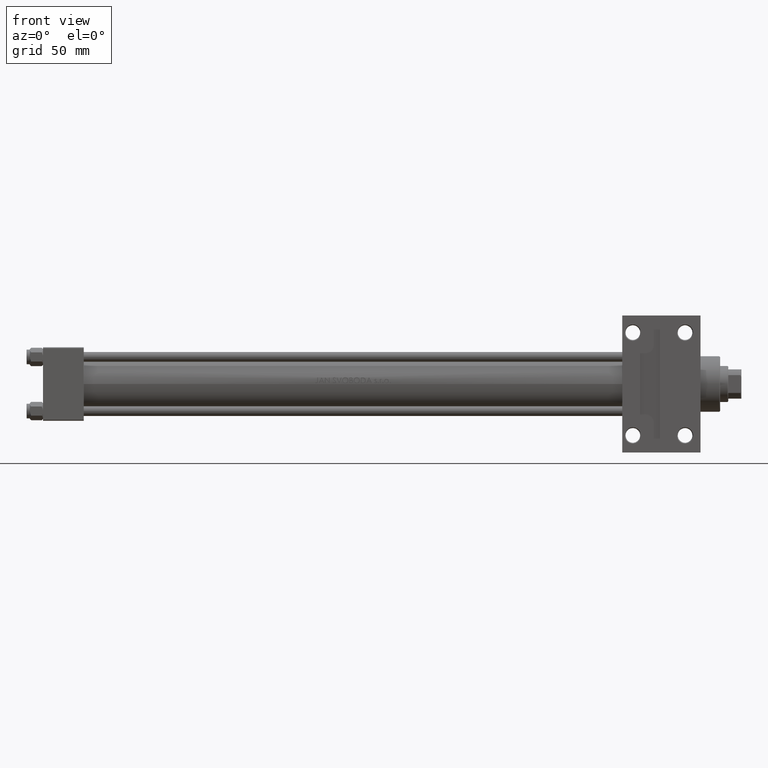
[diagram: clean part render]
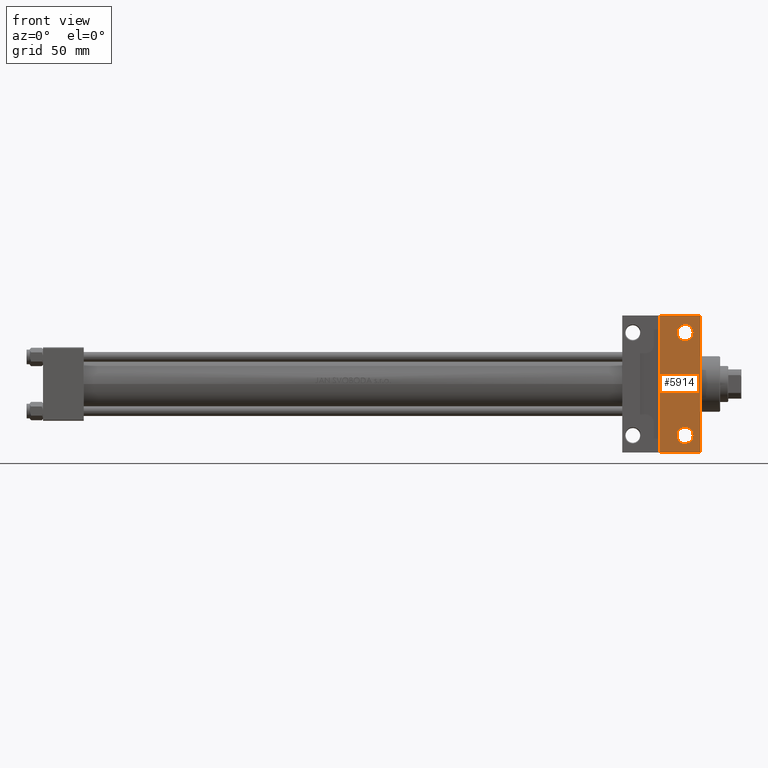
[diagram: same view with one face highlighted and labeled with its STEP entity id]
A machine part, front view. The second image highlights one B-rep face of the part: STEP entity #5914.
In plain terms, the highlighted planar face has unit normal (0, -1, -0).
Its self-contained STEP definition (entity closure, byte-faithful):
#5699 = CIRCLE ( 'NONE', #14885, 4.999499999999712507 ) ;
#5914 = ADVANCED_FACE ( 'NONE', ( #14026, #10877, #39854 ), #7489, .T. ) ;
#6544 = ORIENTED_EDGE ( 'NONE', *, *, #30604, .T. ) ;
#7351 = AXIS2_PLACEMENT_3D ( 'NONE', #7476, #32606, #44182 ) ;
#7476 = CARTESIAN_POINT ( 'NONE',  ( 393.4999999999999432, 31.50000000000000000, -22.49999999999999645 ) ) ;
#7489 = PLANE ( 'NONE',  #26925 ) ;
#8113 = EDGE_CURVE ( 'NONE', #32745, #37792, #17497, .T. ) ;
#8738 = LINE ( 'NONE', #31436, #31135 ) ;
#8976 = CARTESIAN_POINT ( 'NONE',  ( 378.0000000000000000, -41.99999999999997868, -22.50000000000000000 ) ) ;
#10030 = DIRECTION ( 'NONE',  ( 0.000000000000000000, 1.000000000000000000, 0.000000000000000000 ) ) ;
#10877 = FACE_BOUND ( 'NONE', #30916, .T. ) ;
#12607 = ORIENTED_EDGE ( 'NONE', *, *, #45042, .T. ) ;
#12657 = EDGE_LOOP ( 'NONE', ( #6544, #12607 ) ) ;
#13489 = DIRECTION ( 'NONE',  ( -0.000000000000000000, -7.709882115452476934E-17, 1.000000000000000000 ) ) ;
#14026 = FACE_OUTER_BOUND ( 'NONE', #35622, .T. ) ;
#14098 = CARTESIAN_POINT ( 'NONE',  ( 403.0000000000000000, 22.50000000000000355, -22.49999999999999645 ) ) ;
#14427 = CIRCLE ( 'NONE', #28300, 4.999499999999712507 ) ;
#14691 = CARTESIAN_POINT ( 'NONE',  ( 393.4999999999999432, 31.50000000000000000, -22.49999999999999645 ) ) ;
#14885 = AXIS2_PLACEMENT_3D ( 'NONE', #14691, #22383, #29412 ) ;
#15962 = CARTESIAN_POINT ( 'NONE',  ( 403.0000000000000000, -42.00000000000004974, -22.50000000000000000 ) ) ;
#17305 = VERTEX_POINT ( 'NONE', #43764 ) ;
#17497 = LINE ( 'NONE', #36569, #40122 ) ;
#17903 = DIRECTION ( 'NONE',  ( 1.000000000000000000, 0.000000000000000000, 0.000000000000000000 ) ) ;
#18983 = AXIS2_PLACEMENT_3D ( 'NONE', #47187, #43110, #10030 ) ;
#19896 = VERTEX_POINT ( 'NONE', #27175 ) ;
#21480 = DIRECTION ( 'NONE',  ( 0.000000000000000000, 7.709882115452476934E-17, -1.000000000000000000 ) ) ;
#21624 = VERTEX_POINT ( 'NONE', #30957 ) ;
#21687 = ORIENTED_EDGE ( 'NONE', *, *, #41030, .T. ) ;
#21749 = LINE ( 'NONE', #36267, #47666 ) ;
#22383 = DIRECTION ( 'NONE',  ( -0.000000000000000000, -7.709882115452476934E-17, 1.000000000000000000 ) ) ;
#24455 = VECTOR ( 'NONE', #32692, 1000.000000000000000 ) ;
#24459 = LINE ( 'NONE', #14098, #24455 ) ;
#25677 = DIRECTION ( 'NONE',  ( -1.000000000000000000, 2.891205793294679312E-16, -0.000000000000000000 ) ) ;
#26925 = AXIS2_PLACEMENT_3D ( 'NONE', #28744, #21480, #43479 ) ;
#27088 = VERTEX_POINT ( 'NONE', #44285 ) ;
#27175 = CARTESIAN_POINT ( 'NONE',  ( 398.4994999999996708, -31.50000000000000000, -22.50000000000000000 ) ) ;
#27479 = CARTESIAN_POINT ( 'NONE',  ( 393.4999999999999432, -31.50000000000000000, -22.50000000000000000 ) ) ;
#28300 = AXIS2_PLACEMENT_3D ( 'NONE', #27479, #13489, #39084 ) ;
#28744 = CARTESIAN_POINT ( 'NONE',  ( 403.0000000000000000, 22.50000000000000355, -22.49999999999999645 ) ) ;
#29360 = ORIENTED_EDGE ( 'NONE', *, *, #46769, .T. ) ;
#29412 = DIRECTION ( 'NONE',  ( 0.000000000000000000, 1.000000000000000000, 0.000000000000000000 ) ) ;
#30604 = EDGE_CURVE ( 'NONE', #17305, #19896, #39822, .T. ) ;
#30732 = ORIENTED_EDGE ( 'NONE', *, *, #47423, .T. ) ;
#30916 = EDGE_LOOP ( 'NONE', ( #36392, #21687 ) ) ;
#30957 = CARTESIAN_POINT ( 'NONE',  ( 378.0000000000000000, 41.99999999999996447, -22.50000000000000000 ) ) ;
#31135 = VECTOR ( 'NONE', #31198, 1000.000000000000000 ) ;
#31198 = DIRECTION ( 'NONE',  ( -0.000000000000000000, -1.000000000000000000, -0.000000000000000000 ) ) ;
#31436 = CARTESIAN_POINT ( 'NONE',  ( 378.0000000000000000, -41.99999999999997868, -22.50000000000000000 ) ) ;
#32606 = DIRECTION ( 'NONE',  ( -0.000000000000000000, -7.709882115452476934E-17, 1.000000000000000000 ) ) ;
#32692 = DIRECTION ( 'NONE',  ( 0.000000000000000000, -1.000000000000000000, -7.709882115452476934E-17 ) ) ;
#32745 = VERTEX_POINT ( 'NONE', #15962 ) ;
#34016 = EDGE_CURVE ( 'NONE', #27088, #37732, #5699, .T. ) ;
#35293 = CARTESIAN_POINT ( 'NONE',  ( 398.4994999999996708, 31.50000000000000000, -22.49999999999999645 ) ) ;
#35622 = EDGE_LOOP ( 'NONE', ( #41140, #30732, #29360, #41165 ) ) ;
#36267 = CARTESIAN_POINT ( 'NONE',  ( 355.0000000000000000, 41.99999999999996447, -22.50000000000000000 ) ) ;
#36392 = ORIENTED_EDGE ( 'NONE', *, *, #34016, .T. ) ;
#36569 = CARTESIAN_POINT ( 'NONE',  ( 355.0000000000000568, -42.00000000000003553, -22.50000000000000000 ) ) ;
#37359 = CARTESIAN_POINT ( 'NONE',  ( 403.0000000000000000, 41.99999999999996447, -22.50000000000000000 ) ) ;
#37732 = VERTEX_POINT ( 'NONE', #35293 ) ;
#37792 = VERTEX_POINT ( 'NONE', #8976 ) ;
#37806 = EDGE_CURVE ( 'NONE', #21624, #37792, #8738, .T. ) ;
#39084 = DIRECTION ( 'NONE',  ( 0.000000000000000000, 1.000000000000000000, 0.000000000000000000 ) ) ;
#39822 = CIRCLE ( 'NONE', #18983, 4.999499999999712507 ) ;
#39854 = FACE_BOUND ( 'NONE', #12657, .T. ) ;
#40122 = VECTOR ( 'NONE', #25677, 1000.000000000000000 ) ;
#41030 = EDGE_CURVE ( 'NONE', #37732, #27088, #41257, .T. ) ;
#41140 = ORIENTED_EDGE ( 'NONE', *, *, #37806, .F. ) ;
#41165 = ORIENTED_EDGE ( 'NONE', *, *, #8113, .T. ) ;
#41257 = CIRCLE ( 'NONE', #7351, 4.999499999999712507 ) ;
#43110 = DIRECTION ( 'NONE',  ( -0.000000000000000000, -7.709882115452476934E-17, 1.000000000000000000 ) ) ;
#43479 = DIRECTION ( 'NONE',  ( 0.000000000000000000, 1.000000000000000000, 7.709882115452476934E-17 ) ) ;
#43764 = CARTESIAN_POINT ( 'NONE',  ( 388.5005000000002724, -31.50000000000000000, -22.50000000000000000 ) ) ;
#44182 = DIRECTION ( 'NONE',  ( 0.000000000000000000, 1.000000000000000000, 0.000000000000000000 ) ) ;
#44285 = CARTESIAN_POINT ( 'NONE',  ( 388.5005000000002724, 31.50000000000000000, -22.49999999999999645 ) ) ;
#45042 = EDGE_CURVE ( 'NONE', #19896, #17305, #14427, .T. ) ;
#45217 = VERTEX_POINT ( 'NONE', #37359 ) ;
#46769 = EDGE_CURVE ( 'NONE', #45217, #32745, #24459, .T. ) ;
#47187 = CARTESIAN_POINT ( 'NONE',  ( 393.4999999999999432, -31.50000000000000000, -22.50000000000000000 ) ) ;
#47423 = EDGE_CURVE ( 'NONE', #21624, #45217, #21749, .T. ) ;
#47666 = VECTOR ( 'NONE', #17903, 1000.000000000000000 ) ;